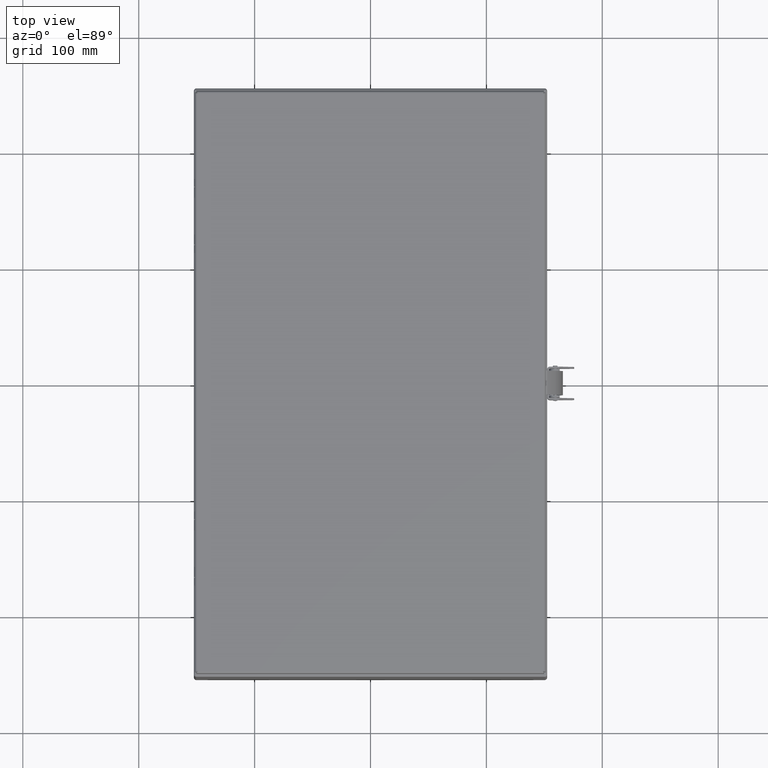
[diagram: clean part render]
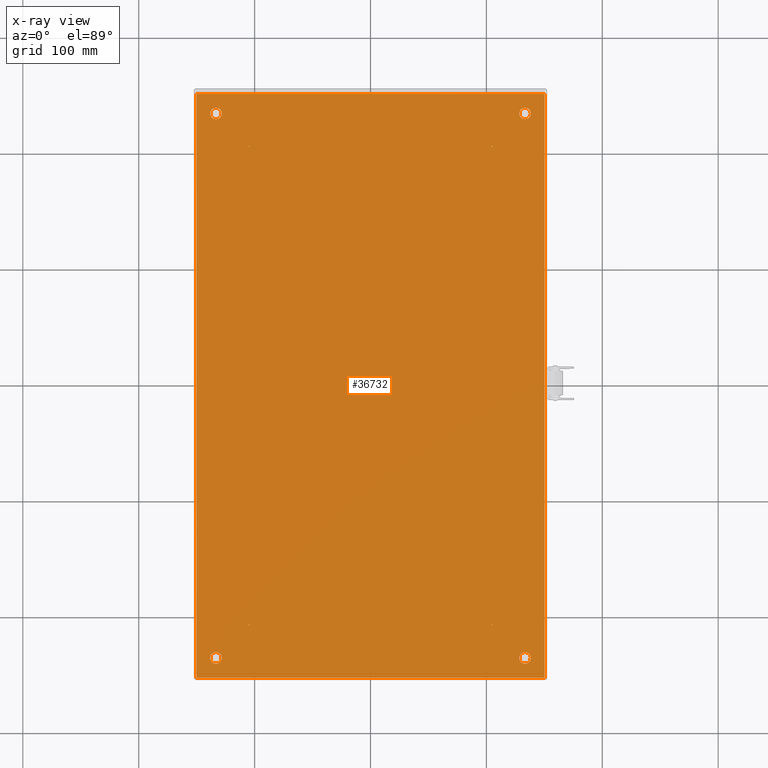
[diagram: x-ray — body ghosted, one internal face saturated and labeled with its STEP entity id]
A machine part, top view, then the same camera in x-ray: the body is ghosted and one INTERNAL B-rep face — a face not visible from any outside direction — is saturated and labeled: STEP entity #36732.
In plain terms, the highlighted planar face has unit normal (0, 0, 1).
Its self-contained STEP definition (entity closure, byte-faithful):
#672=FACE_BOUND('',#11085,.T.);
#673=FACE_BOUND('',#11086,.T.);
#674=FACE_BOUND('',#11087,.T.);
#675=FACE_BOUND('',#11088,.T.);
#676=FACE_BOUND('',#11089,.T.);
#677=FACE_BOUND('',#11090,.T.);
#678=FACE_BOUND('',#11091,.T.);
#679=FACE_BOUND('',#11092,.T.);
#3569=LINE('',#52355,#5771);
#3586=LINE('',#52413,#5788);
#3665=LINE('',#52722,#5867);
#3694=LINE('',#52803,#5896);
#5771=VECTOR('',#43145,0.393700787401575);
#5788=VECTOR('',#43208,0.393700787401575);
#5867=VECTOR('',#43553,0.393700787401575);
#5896=VECTOR('',#43670,0.393700787401575);
#8778=FACE_OUTER_BOUND('',#11084,.T.);
#11084=EDGE_LOOP('',(#24890,#24891,#24892,#24893));
#11085=EDGE_LOOP('',(#24894));
#11086=EDGE_LOOP('',(#24895));
#11087=EDGE_LOOP('',(#24896));
#11088=EDGE_LOOP('',(#24897));
#11089=EDGE_LOOP('',(#24898));
#11090=EDGE_LOOP('',(#24899));
#11091=EDGE_LOOP('',(#24900));
#11092=EDGE_LOOP('',(#24901));
#13371=CIRCLE('',#39615,0.195);
#13373=CIRCLE('',#39618,0.195);
#13375=CIRCLE('',#39621,0.195);
#13377=CIRCLE('',#39624,0.195);
#13491=CIRCLE('',#39858,0.015);
#13493=CIRCLE('',#39862,0.015);
#13495=CIRCLE('',#39866,0.015);
#13497=CIRCLE('',#39870,0.015);
#14866=VERTEX_POINT('',#51900);
#14868=VERTEX_POINT('',#51906);
#14870=VERTEX_POINT('',#51912);
#14872=VERTEX_POINT('',#51918);
#14915=VERTEX_POINT('',#52347);
#14917=VERTEX_POINT('',#52353);
#14933=VERTEX_POINT('',#52405);
#14935=VERTEX_POINT('',#52411);
#15033=VERTEX_POINT('',#52768);
#15035=VERTEX_POINT('',#52775);
#15037=VERTEX_POINT('',#52782);
#15039=VERTEX_POINT('',#52789);
#18501=EDGE_CURVE('',#14866,#14866,#13371,.T.);
#18504=EDGE_CURVE('',#14868,#14868,#13373,.T.);
#18507=EDGE_CURVE('',#14870,#14870,#13375,.T.);
#18510=EDGE_CURVE('',#14872,#14872,#13377,.T.);
#18581=EDGE_CURVE('',#14915,#14917,#3569,.T.);
#18610=EDGE_CURVE('',#14933,#14935,#3586,.T.);
#18766=EDGE_CURVE('',#14935,#14915,#3665,.T.);
#18789=EDGE_CURVE('',#15033,#15033,#13491,.T.);
#18792=EDGE_CURVE('',#15035,#15035,#13493,.T.);
#18795=EDGE_CURVE('',#15037,#15037,#13495,.T.);
#18798=EDGE_CURVE('',#15039,#15039,#13497,.T.);
#18803=EDGE_CURVE('',#14917,#14933,#3694,.T.);
#24890=ORIENTED_EDGE('',*,*,#18581,.T.);
#24891=ORIENTED_EDGE('',*,*,#18803,.T.);
#24892=ORIENTED_EDGE('',*,*,#18610,.T.);
#24893=ORIENTED_EDGE('',*,*,#18766,.T.);
#24894=ORIENTED_EDGE('',*,*,#18501,.T.);
#24895=ORIENTED_EDGE('',*,*,#18504,.T.);
#24896=ORIENTED_EDGE('',*,*,#18507,.T.);
#24897=ORIENTED_EDGE('',*,*,#18510,.T.);
#24898=ORIENTED_EDGE('',*,*,#18789,.T.);
#24899=ORIENTED_EDGE('',*,*,#18792,.T.);
#24900=ORIENTED_EDGE('',*,*,#18795,.T.);
#24901=ORIENTED_EDGE('',*,*,#18798,.T.);
#35971=PLANE('',#39878);
#36732=ADVANCED_FACE('',(#8778,#672,#673,#674,#675,#676,#677,#678,#679),
#35971,.T.);
#39615=AXIS2_PLACEMENT_3D('',#51901,#42984,#42985);
#39618=AXIS2_PLACEMENT_3D('',#51907,#42991,#42992);
#39621=AXIS2_PLACEMENT_3D('',#51913,#42998,#42999);
#39624=AXIS2_PLACEMENT_3D('',#51919,#43005,#43006);
#39858=AXIS2_PLACEMENT_3D('',#52769,#43622,#43623);
#39862=AXIS2_PLACEMENT_3D('',#52776,#43631,#43632);
#39866=AXIS2_PLACEMENT_3D('',#52783,#43640,#43641);
#39870=AXIS2_PLACEMENT_3D('',#52790,#43649,#43650);
#39878=AXIS2_PLACEMENT_3D('',#52802,#43668,#43669);
#42984=DIRECTION('center_axis',(0.,0.,-1.));
#42985=DIRECTION('ref_axis',(1.,0.,0.));
#42991=DIRECTION('center_axis',(0.,0.,-1.));
#42992=DIRECTION('ref_axis',(1.,0.,0.));
#42998=DIRECTION('center_axis',(0.,0.,-1.));
#42999=DIRECTION('ref_axis',(1.,0.,0.));
#43005=DIRECTION('center_axis',(0.,0.,-1.));
#43006=DIRECTION('ref_axis',(1.,0.,0.));
#43145=DIRECTION('',(0.,1.,0.));
#43208=DIRECTION('',(0.,-1.,0.));
#43553=DIRECTION('',(1.,0.,0.));
#43622=DIRECTION('center_axis',(0.,0.,-1.));
#43623=DIRECTION('ref_axis',(-1.,0.,0.));
#43631=DIRECTION('center_axis',(0.,0.,-1.));
#43632=DIRECTION('ref_axis',(-1.,0.,0.));
#43640=DIRECTION('center_axis',(0.,0.,-1.));
#43641=DIRECTION('ref_axis',(-1.,0.,0.));
#43649=DIRECTION('center_axis',(0.,0.,-1.));
#43650=DIRECTION('ref_axis',(-1.,0.,0.));
#43668=DIRECTION('center_axis',(0.,0.,1.));
#43669=DIRECTION('ref_axis',(1.,0.,0.));
#43670=DIRECTION('',(-1.,0.,0.));
#51900=CARTESIAN_POINT('',(5.055,-9.25,0.053));
#51901=CARTESIAN_POINT('Origin',(5.25,-9.25,0.053));
#51906=CARTESIAN_POINT('',(5.055,9.25,0.053));
#51907=CARTESIAN_POINT('Origin',(5.25,9.25,0.053));
#51912=CARTESIAN_POINT('',(-5.445,9.25,0.053));
#51913=CARTESIAN_POINT('Origin',(-5.25,9.25,0.053));
#51918=CARTESIAN_POINT('',(-5.445,-9.25,0.053));
#51919=CARTESIAN_POINT('Origin',(-5.25,-9.25,0.053));
#52347=CARTESIAN_POINT('',(5.916,-9.916,0.053));
#52353=CARTESIAN_POINT('',(5.916,9.916,0.053));
#52355=CARTESIAN_POINT('',(5.916,-5.,0.053));
#52405=CARTESIAN_POINT('',(-5.916,9.916,0.053));
#52411=CARTESIAN_POINT('',(-5.916,-9.916,0.053));
#52413=CARTESIAN_POINT('',(-5.916,5.,0.053));
#52722=CARTESIAN_POINT('',(-2.958,-9.916,0.053));
#52768=CARTESIAN_POINT('',(-4.11,-8.125,0.053));
#52769=CARTESIAN_POINT('Origin',(-4.125,-8.125,0.053));
#52775=CARTESIAN_POINT('',(-4.11,8.125,0.053));
#52776=CARTESIAN_POINT('Origin',(-4.125,8.125,0.053));
#52782=CARTESIAN_POINT('',(4.14,8.125,0.053));
#52783=CARTESIAN_POINT('Origin',(4.125,8.125,0.053));
#52789=CARTESIAN_POINT('',(4.14,-8.125,0.053));
#52790=CARTESIAN_POINT('Origin',(4.125,-8.125,0.053));
#52802=CARTESIAN_POINT('Origin',(0.,-1.58943883267739E-16,0.053));
#52803=CARTESIAN_POINT('',(2.958,9.916,0.053));